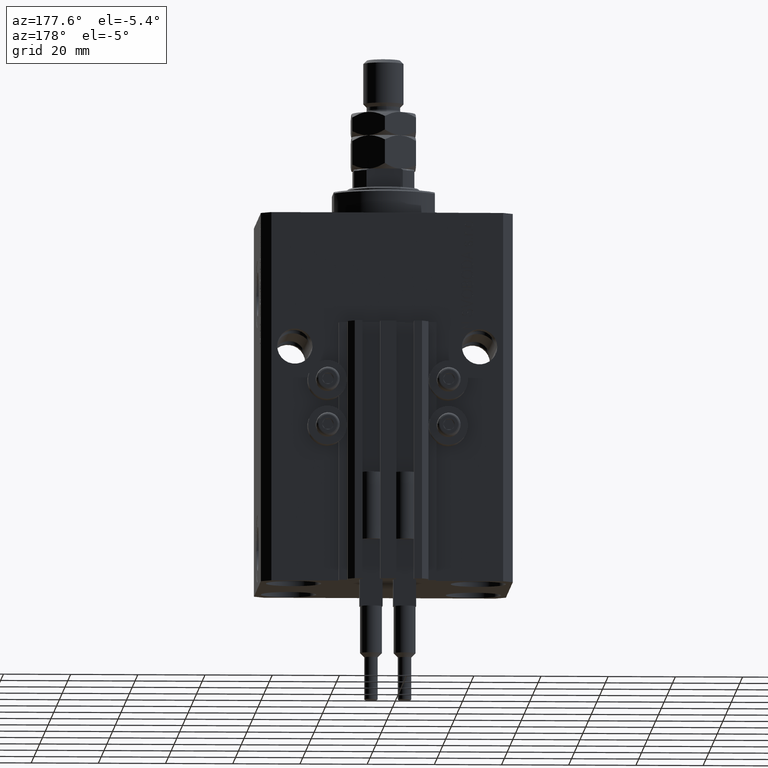
[diagram: clean part render]
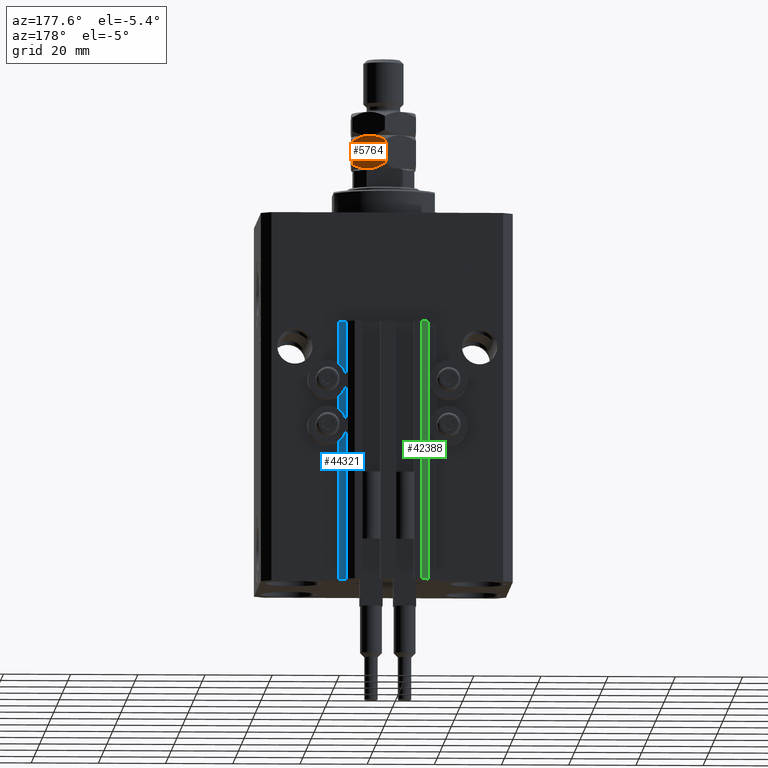
[diagram: same view with three faces highlighted in distinct colors, each labeled with its STEP entity id]
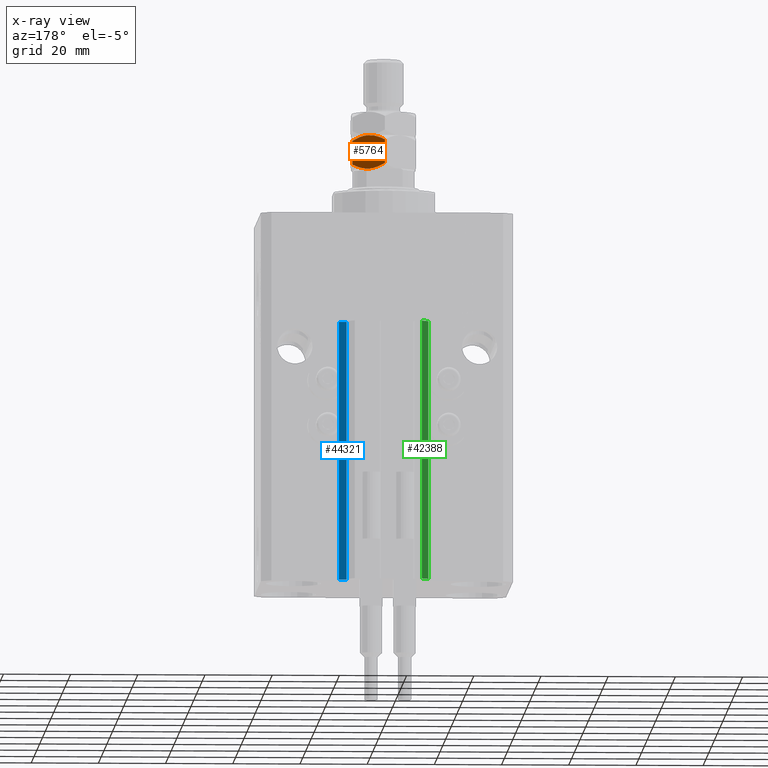
[diagram: x-ray of the same camera — body ghosted, the three highlighted faces saturated]
A machine part, auxiliary view with three faces highlighted in distinct colors.
The next image is the same camera in x-ray (body ghosted, the three faces saturated) — at least one of them is partly hidden behind the body in this view.
Their STEP definitions:

[orange] entity #5764 — the highlighted planar face has unit normal (-0.5, -0.866, 0).
#747 = CARTESIAN_POINT ( 'NONE',  ( 0.000000000000000000, 10.96965511460288667, 10.00000000000000000 ) ) ;
#889 = EDGE_CURVE ( 'NONE', #11496, #35473, #5751, .T. ) ;
#1442 = CARTESIAN_POINT ( 'NONE',  ( 8.755131854751343923, 5.914877381471537632, 8.960394709567205851 ) ) ;
#3368 = FACE_OUTER_BOUND ( 'NONE', #25964, .T. ) ;
#3612 = DIRECTION ( 'NONE',  ( 0.8660254037844387076, -0.4999999999999997780, 0.000000000000000000 ) ) ;
#3752 = CARTESIAN_POINT ( 'NONE',  ( 7.990178599141542826, 6.356523349515333265, 0.6716369694512659416 ) ) ;
#4804 = EDGE_CURVE ( 'NONE', #29130, #34668, #37965, .T. ) ;
#5751 = B_SPLINE_CURVE_WITH_KNOTS ( 'NONE', 3,
 ( #45832, #22925, #7828, #42802, #39286, #15622, #30489, #11603 ),
 .UNSPECIFIED., .F., .F.,
 ( 4, 2, 2, 4 ),
 ( 2.544312669947371985E-07, 0.002843014744722341131, 0.004264394901450013937, 0.005685775058177688912 ),
 .UNSPECIFIED. ) ;
#5764 = ADVANCED_FACE ( 'NONE', ( #3368 ), #6914, .F. ) ;
#6665 = CARTESIAN_POINT ( 'NONE',  ( 3.111617971331827270, 9.173161641239184760, 9.854124384224535405 ) ) ;
#6914 = PLANE ( 'NONE',  #7614 ) ;
#7614 = AXIS2_PLACEMENT_3D ( 'NONE', #49416, #10684, #3612 ) ;
#7657 = CARTESIAN_POINT ( 'NONE',  ( 4.750000000000000888, 8.227241335952163226, 10.00000000000000000 ) ) ;
#7828 = CARTESIAN_POINT ( 'NONE',  ( 1.506594318812382260, 10.09982247907699637, 0.6741748824712761046 ) ) ;
#8849 = VERTEX_POINT ( 'NONE', #37319 ) ;
#8856 = CARTESIAN_POINT ( 'NONE',  ( 7.043584025308272669E-16, 10.96965511460288667, 1.469655114602882007 ) ) ;
#9497 = CARTESIAN_POINT ( 'NONE',  ( 6.809745054052672941, 7.038046974532853994, 9.716537861568809831 ) ) ;
#10684 = DIRECTION ( 'NONE',  ( -0.4999999999999998335, -0.8660254037844388186, 0.000000000000000000 ) ) ;
#11326 = CARTESIAN_POINT ( 'NONE',  ( 5.576215397865947665, 7.750225653585646413, -3.354250471127028357E-16 ) ) ;
#11496 = VERTEX_POINT ( 'NONE', #8856 ) ;
#11603 = CARTESIAN_POINT ( 'NONE',  ( 4.749999999999998224, 8.227241335952168555, 0.000000000000000000 ) ) ;
#13043 = EDGE_CURVE ( 'NONE', #8849, #29130, #24780, .T. ) ;
#14116 = DIRECTION ( 'NONE',  ( -0.000000000000000000, -0.000000000000000000, -1.000000000000000000 ) ) ;
#14157 = VECTOR ( 'NONE', #14116, 1000.000000000000000 ) ;
#15622 = CARTESIAN_POINT ( 'NONE',  ( 3.911732050025009677, 8.711215562523262790, 0.03770576873299955750 ) ) ;
#16299 = CARTESIAN_POINT ( 'NONE',  ( 5.588267949974992987, 7.743267109381068991, 9.962294231267000200 ) ) ;
#16788 = CARTESIAN_POINT ( 'NONE',  ( 7.993405681187616629, 6.354660192827334519, 9.325825117528722785 ) ) ;
#18213 = CARTESIAN_POINT ( 'NONE',  ( -3.412354640325339130E-17, 10.96965511460288667, 8.530344885397118659 ) ) ;
#18446 = EDGE_CURVE ( 'NONE', #35473, #33233, #29347, .T. ) ;
#19101 = CARTESIAN_POINT ( 'NONE',  ( 8.755994125639036341, 5.914379549142410042, 1.040103122761829368 ) ) ;
#19349 = CARTESIAN_POINT ( 'NONE',  ( 4.749999999999998224, 8.227241335952168555, 0.000000000000000000 ) ) ;
#20066 = CARTESIAN_POINT ( 'NONE',  ( 4.750000000000000888, 8.227241335952163226, 10.00000000000000000 ) ) ;
#20111 = DIRECTION ( 'NONE',  ( -0.000000000000000000, -0.000000000000000000, -1.000000000000000000 ) ) ;
#20616 = ORIENTED_EDGE ( 'NONE', *, *, #13043, .F. ) ;
#20644 = LINE ( 'NONE', #37041, #14157 ) ;
#22251 = CARTESIAN_POINT ( 'NONE',  ( 3.923784602134051447, 8.704257018318687145, 10.00000000000000178 ) ) ;
#22365 = CARTESIAN_POINT ( 'NONE',  ( -3.412354640325339130E-17, 10.96965511460288667, 8.530344885397118659 ) ) ;
#22925 = CARTESIAN_POINT ( 'NONE',  ( 0.7448681452486597410, 10.53960529043279415, 1.039605290432792151 ) ) ;
#23840 = CARTESIAN_POINT ( 'NONE',  ( 6.408273631871775677, 7.269836608200939132, 9.820258145287965590 ) ) ;
#23986 = ORIENTED_EDGE ( 'NONE', *, *, #18446, .F. ) ;
#24780 = B_SPLINE_CURVE_WITH_KNOTS ( 'NONE', 3,
 ( #27879, #1442, #16788, #9497, #23840, #16299, #43487, #20066 ),
 .UNSPECIFIED., .F., .F.,
 ( 4, 2, 2, 4 ),
 ( 2.544312669948822529E-07, 0.002843014744722341565, 0.004264394901450016540, 0.005685775058177690647 ),
 .UNSPECIFIED. ) ;
#25964 = EDGE_LOOP ( 'NONE', ( #30194, #34047, #34454, #20616, #36416, #23986 ) ) ;
#27879 = CARTESIAN_POINT ( 'NONE',  ( 9.500000000000000000, 5.484827557301445111, 8.530344885397115107 ) ) ;
#28958 = CARTESIAN_POINT ( 'NONE',  ( 9.500000000000000000, 5.484827557301445999, 1.469655114602884671 ) ) ;
#29130 = VERTEX_POINT ( 'NONE', #48191 ) ;
#29347 = B_SPLINE_CURVE_WITH_KNOTS ( 'NONE', 3,
 ( #19349, #11326, #42045, #3752, #19101, #46040 ),
 .UNSPECIFIED., .F., .F.,
 ( 4, 2, 4 ),
 ( 0.005685775058177688912, 0.008508623398180321928, 0.01133147173818295668 ),
 .UNSPECIFIED. ) ;
#30194 = ORIENTED_EDGE ( 'NONE', *, *, #889, .F. ) ;
#30489 = CARTESIAN_POINT ( 'NONE',  ( 4.333978297711723826, 8.467431577757027483, -4.811147140404423954E-16 ) ) ;
#33233 = VERTEX_POINT ( 'NONE', #28958 ) ;
#33237 = EDGE_CURVE ( 'NONE', #8849, #33233, #20644, .T. ) ;
#34047 = ORIENTED_EDGE ( 'NONE', *, *, #34461, .F. ) ;
#34454 = ORIENTED_EDGE ( 'NONE', *, *, #4804, .F. ) ;
#34461 = EDGE_CURVE ( 'NONE', #34668, #11496, #43533, .T. ) ;
#34668 = VERTEX_POINT ( 'NONE', #22365 ) ;
#35473 = VERTEX_POINT ( 'NONE', #48764 ) ;
#35901 = VECTOR ( 'NONE', #20111, 1000.000000000000000 ) ;
#36416 = ORIENTED_EDGE ( 'NONE', *, *, #33237, .T. ) ;
#37041 = CARTESIAN_POINT ( 'NONE',  ( 9.500000000000000000, 5.484827557301445111, 10.00000000000000000 ) ) ;
#37319 = CARTESIAN_POINT ( 'NONE',  ( 9.500000000000000000, 5.484827557301445111, 8.530344885397115107 ) ) ;
#37965 = B_SPLINE_CURVE_WITH_KNOTS ( 'NONE', 3,
 ( #7657, #22251, #6665, #49666, #45157, #18213 ),
 .UNSPECIFIED., .F., .F.,
 ( 4, 2, 4 ),
 ( 0.005685775058177690647, 0.008508623398180323663, 0.01133147173818295668 ),
 .UNSPECIFIED. ) ;
#39286 = CARTESIAN_POINT ( 'NONE',  ( 3.091726368128225655, 9.184646063703393537, 0.1797418547120336607 ) ) ;
#42045 = CARTESIAN_POINT ( 'NONE',  ( 6.388382028668172730, 7.281321030665154126, 0.1458756157754674820 ) ) ;
#42802 = CARTESIAN_POINT ( 'NONE',  ( 2.690254945947325282, 9.416435697371476010, 0.2834621384311878933 ) ) ;
#43487 = CARTESIAN_POINT ( 'NONE',  ( 5.166021702288277062, 7.987051094147303409, 10.00000000000000000 ) ) ;
#43533 = LINE ( 'NONE', #747, #35901 ) ;
#45157 = CARTESIAN_POINT ( 'NONE',  ( 0.7440058743609633263, 10.54010312276191996, 8.959896877238174184 ) ) ;
#45832 = CARTESIAN_POINT ( 'NONE',  ( 7.043584025308272669E-16, 10.96965511460288667, 1.469655114602882007 ) ) ;
#46040 = CARTESIAN_POINT ( 'NONE',  ( 9.500000000000000000, 5.484827557301445999, 1.469655114602884671 ) ) ;
#48191 = CARTESIAN_POINT ( 'NONE',  ( 4.750000000000000888, 8.227241335952163226, 10.00000000000000000 ) ) ;
#48764 = CARTESIAN_POINT ( 'NONE',  ( 4.749999999999998224, 8.227241335952168555, 0.000000000000000000 ) ) ;
#49416 = CARTESIAN_POINT ( 'NONE',  ( 9.500000000000000000, 5.484827557301445111, 10.00000000000000000 ) ) ;
#49666 = CARTESIAN_POINT ( 'NONE',  ( 1.509821400858456730, 10.09795932238899852, 9.328363030548736390 ) ) ;

[blue] entity #44321 — the highlighted planar face has unit normal (0, 1, 0).
#2243 = ORIENTED_EDGE ( 'NONE', *, *, #9593, .T. ) ;
#2680 = LINE ( 'NONE', #44977, #15637 ) ;
#3731 = CARTESIAN_POINT ( 'NONE',  ( 12.20000000000000107, 30.00000000000002487, -110.0000000000000000 ) ) ;
#5483 = CARTESIAN_POINT ( 'NONE',  ( 14.49999999999999645, 30.00000000000002487, -110.0000000000000000 ) ) ;
#6325 = ORIENTED_EDGE ( 'NONE', *, *, #28116, .T. ) ;
#8528 = PLANE ( 'NONE',  #29700 ) ;
#8530 = VERTEX_POINT ( 'NONE', #3731 ) ;
#9593 = EDGE_CURVE ( 'NONE', #37401, #8530, #2680, .T. ) ;
#12822 = CARTESIAN_POINT ( 'NONE',  ( 14.49999999999999645, 30.00000000000002487, -33.00000000000000000 ) ) ;
#15637 = VECTOR ( 'NONE', #25827, 1000.000000000000000 ) ;
#16200 = ORIENTED_EDGE ( 'NONE', *, *, #21924, .F. ) ;
#17291 = CARTESIAN_POINT ( 'NONE',  ( 12.20000000000000107, 30.00000000000002487, -33.00000000000000000 ) ) ;
#18878 = DIRECTION ( 'NONE',  ( -1.000000000000000000, 0.000000000000000000, 0.000000000000000000 ) ) ;
#20828 = DIRECTION ( 'NONE',  ( 0.000000000000000000, 1.000000000000000000, -0.000000000000000000 ) ) ;
#21279 = VECTOR ( 'NONE', #41978, 1000.000000000000000 ) ;
#21924 = EDGE_CURVE ( 'NONE', #37401, #46829, #26324, .T. ) ;
#25827 = DIRECTION ( 'NONE',  ( -1.000000000000000000, 0.000000000000000000, 0.000000000000000000 ) ) ;
#26324 = LINE ( 'NONE', #29611, #36056 ) ;
#26640 = CARTESIAN_POINT ( 'NONE',  ( 14.49999999999999645, 30.00000000000002487, -110.0000000000000000 ) ) ;
#26840 = LINE ( 'NONE', #31610, #21279 ) ;
#27041 = ORIENTED_EDGE ( 'NONE', *, *, #49406, .F. ) ;
#28116 = EDGE_CURVE ( 'NONE', #8530, #46534, #26840, .T. ) ;
#29611 = CARTESIAN_POINT ( 'NONE',  ( 14.49999999999999645, 30.00000000000002487, -110.0000000000000000 ) ) ;
#29700 = AXIS2_PLACEMENT_3D ( 'NONE', #5483, #20828, #36221 ) ;
#31610 = CARTESIAN_POINT ( 'NONE',  ( 12.20000000000000107, 30.00000000000002487, -110.0000000000000000 ) ) ;
#36056 = VECTOR ( 'NONE', #38185, 1000.000000000000000 ) ;
#36221 = DIRECTION ( 'NONE',  ( 0.000000000000000000, 0.000000000000000000, 1.000000000000000000 ) ) ;
#37401 = VERTEX_POINT ( 'NONE', #26640 ) ;
#37850 = EDGE_LOOP ( 'NONE', ( #27041, #16200, #2243, #6325 ) ) ;
#38185 = DIRECTION ( 'NONE',  ( 0.000000000000000000, 0.000000000000000000, 1.000000000000000000 ) ) ;
#39990 = FACE_OUTER_BOUND ( 'NONE', #37850, .T. ) ;
#40819 = CARTESIAN_POINT ( 'NONE',  ( 14.49999999999999645, 30.00000000000002487, -33.00000000000000000 ) ) ;
#41071 = LINE ( 'NONE', #40819, #49155 ) ;
#41978 = DIRECTION ( 'NONE',  ( 0.000000000000000000, 0.000000000000000000, 1.000000000000000000 ) ) ;
#44321 = ADVANCED_FACE ( 'NONE', ( #39990 ), #8528, .T. ) ;
#44977 = CARTESIAN_POINT ( 'NONE',  ( 14.49999999999999645, 30.00000000000002487, -110.0000000000000000 ) ) ;
#46534 = VERTEX_POINT ( 'NONE', #17291 ) ;
#46829 = VERTEX_POINT ( 'NONE', #12822 ) ;
#49155 = VECTOR ( 'NONE', #18878, 1000.000000000000000 ) ;
#49406 = EDGE_CURVE ( 'NONE', #46829, #46534, #41071, .T. ) ;

[green] entity #42388 — the highlighted planar face has unit normal (-0.7071, 0.7071, 0).
#2079 = CARTESIAN_POINT ( 'NONE',  ( -10.00000000000000000, 35.50000000000000000, -33.00000000000000000 ) ) ;
#3157 = CARTESIAN_POINT ( 'NONE',  ( -10.00000000000000000, 35.50000000000000000, -110.0000000000000000 ) ) ;
#4646 = CARTESIAN_POINT ( 'NONE',  ( -10.00000000000000000, 35.50000000000000000, -110.0000000000000000 ) ) ;
#6190 = FACE_OUTER_BOUND ( 'NONE', #27359, .T. ) ;
#6456 = VECTOR ( 'NONE', #34031, 1000.000000000000000 ) ;
#6953 = DIRECTION ( 'NONE',  ( -0.7071067811865490160, 0.7071067811865461294, 0.000000000000000000 ) ) ;
#8427 = DIRECTION ( 'NONE',  ( -0.7071067811865460184, -0.7071067811865490160, 0.000000000000000000 ) ) ;
#12656 = CARTESIAN_POINT ( 'NONE',  ( -12.00000000000000000, 33.49999999999998579, -110.0000000000000000 ) ) ;
#17448 = DIRECTION ( 'NONE',  ( 0.000000000000000000, 0.000000000000000000, 1.000000000000000000 ) ) ;
#18115 = CARTESIAN_POINT ( 'NONE',  ( -10.00000000000000000, 35.50000000000000000, -33.00000000000000000 ) ) ;
#18345 = VECTOR ( 'NONE', #8427, 1000.000000000000227 ) ;
#19145 = VECTOR ( 'NONE', #17448, 1000.000000000000000 ) ;
#20052 = AXIS2_PLACEMENT_3D ( 'NONE', #3157, #6953, #26307 ) ;
#20099 = VERTEX_POINT ( 'NONE', #33194 ) ;
#21060 = EDGE_CURVE ( 'NONE', #34965, #32940, #39897, .T. ) ;
#21639 = ORIENTED_EDGE ( 'NONE', *, *, #21060, .F. ) ;
#21983 = EDGE_CURVE ( 'NONE', #34965, #23127, #35392, .T. ) ;
#22552 = CARTESIAN_POINT ( 'NONE',  ( -10.00000000000000000, 35.50000000000000000, -110.0000000000000000 ) ) ;
#23127 = VERTEX_POINT ( 'NONE', #12656 ) ;
#25222 = ORIENTED_EDGE ( 'NONE', *, *, #21983, .T. ) ;
#25268 = ORIENTED_EDGE ( 'NONE', *, *, #46346, .T. ) ;
#26307 = DIRECTION ( 'NONE',  ( -0.7071067811865460184, -0.7071067811865489050, 0.000000000000000000 ) ) ;
#26432 = DIRECTION ( 'NONE',  ( -0.7071067811865460184, -0.7071067811865490160, 0.000000000000000000 ) ) ;
#27359 = EDGE_LOOP ( 'NONE', ( #48833, #21639, #25222, #25268 ) ) ;
#32325 = CARTESIAN_POINT ( 'NONE',  ( -10.00000000000000000, 35.50000000000000000, -110.0000000000000000 ) ) ;
#32940 = VERTEX_POINT ( 'NONE', #2079 ) ;
#33194 = CARTESIAN_POINT ( 'NONE',  ( -12.00000000000000000, 33.49999999999998579, -33.00000000000000000 ) ) ;
#33301 = EDGE_CURVE ( 'NONE', #32940, #20099, #38288, .T. ) ;
#34031 = DIRECTION ( 'NONE',  ( 0.000000000000000000, 0.000000000000000000, 1.000000000000000000 ) ) ;
#34965 = VERTEX_POINT ( 'NONE', #22552 ) ;
#35392 = LINE ( 'NONE', #4646, #18345 ) ;
#36646 = VECTOR ( 'NONE', #26432, 1000.000000000000227 ) ;
#37555 = LINE ( 'NONE', #41318, #6456 ) ;
#38288 = LINE ( 'NONE', #18115, #36646 ) ;
#39897 = LINE ( 'NONE', #32325, #19145 ) ;
#41318 = CARTESIAN_POINT ( 'NONE',  ( -12.00000000000000000, 33.49999999999998579, -110.0000000000000000 ) ) ;
#41438 = PLANE ( 'NONE',  #20052 ) ;
#42388 = ADVANCED_FACE ( 'NONE', ( #6190 ), #41438, .T. ) ;
#46346 = EDGE_CURVE ( 'NONE', #23127, #20099, #37555, .T. ) ;
#48833 = ORIENTED_EDGE ( 'NONE', *, *, #33301, .F. ) ;